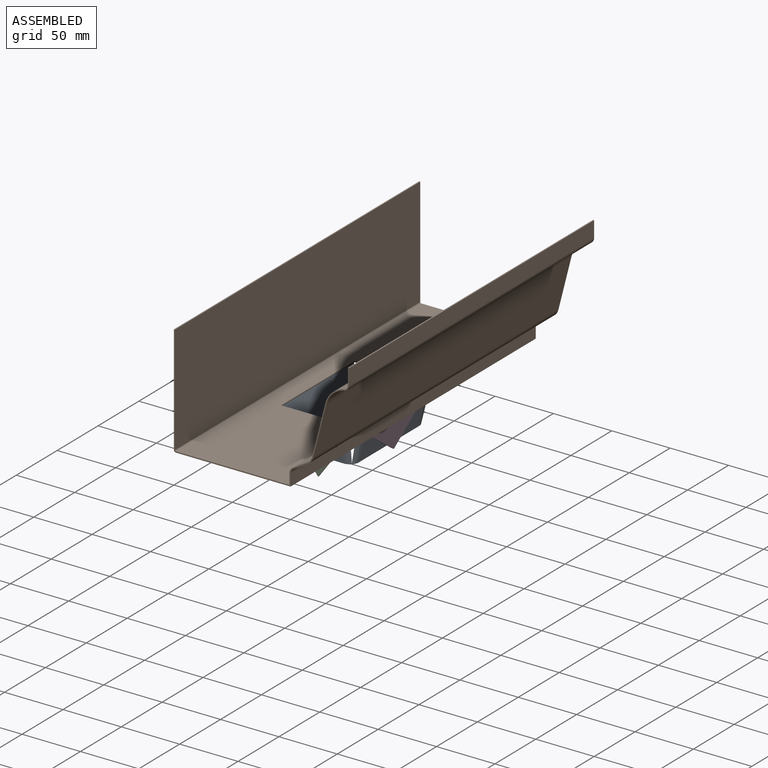
[diagram: assembled view]
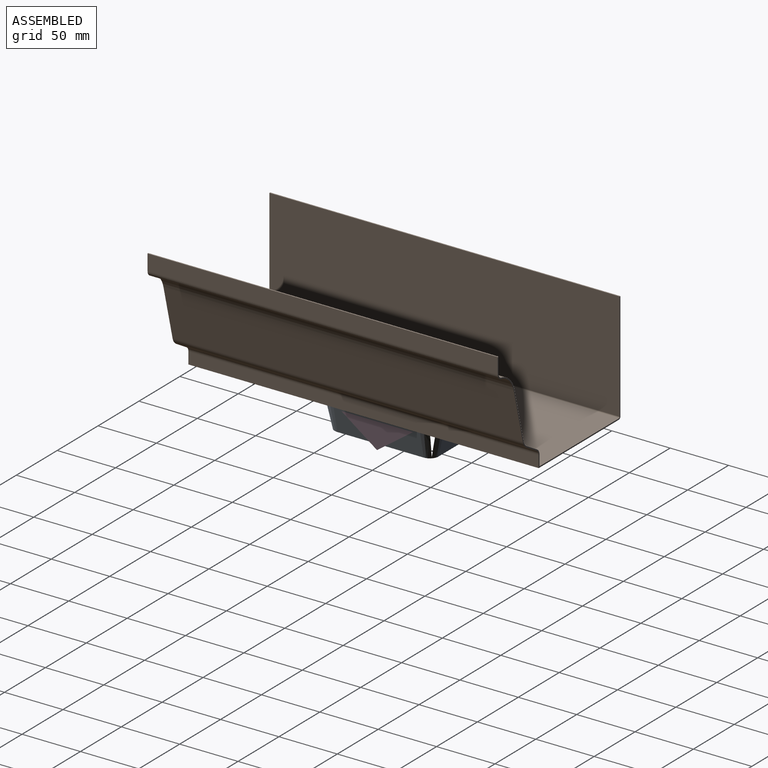
[diagram: assembled view, second angle]
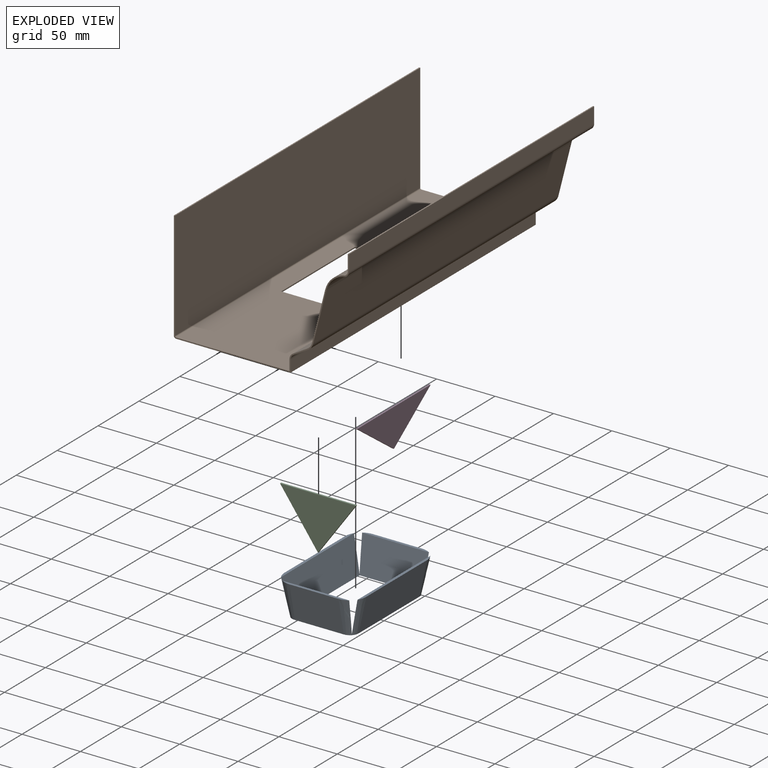
[diagram: exploded view]
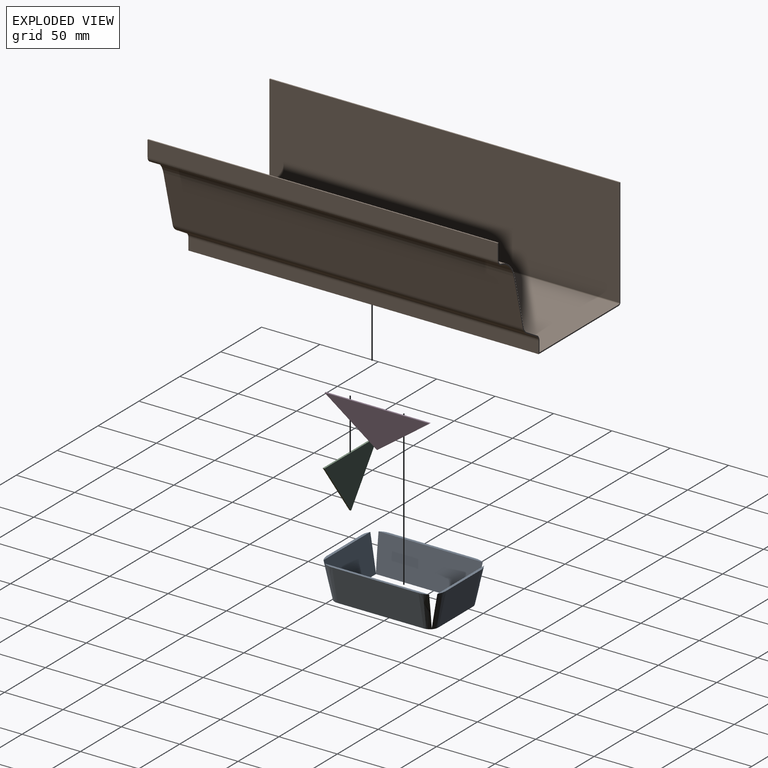
[diagram: exploded view, second angle]
ASSEMBLY  parts=4 mates=3
PART A: 17 faces, bbox 102.5x70.5x30.5 mm
  f0: plane 57.22x2.25mm, normal (0,0,1), area 117.7mm2, adj f5,f11,f12,f15
  f1: plane 89.22x2.25mm, normal (0,0,1), area 189.7mm2, adj f5,f6,f7,f16
  f2: plane 57.22x2.25mm, normal (0,0,1), area 117.7mm2, adj f7,f8,f9,f13
  f3: plane 89x57mm, normal (0,0,-1), area 588.5mm2, adj f5,f6,f7,f8,f9,f10,f11,f12
  f4: plane 89.22x2.25mm, normal (0,0,1), area 189.7mm2, adj f9,f10,f11,f14
  f5: cone r=7.5mm half-angle=12.2deg, axis (0,0,1), area 443.6mm2, adj f0,f1,f3,f6,f12,f15,f16
  f6: plane 74x30mm, normal (0,-0.98,-0.21), area 2271.5mm2, adj f1,f3,f5,f7
  f7: cone r=7.5mm half-angle=12.2deg, axis (0,0,1), area 443.6mm2, adj f1,f2,f3,f6,f8,f13,f16
  f8: plane 42x30mm, normal (0.98,0,-0.21), area 1289.2mm2, adj f2,f3,f7,f9
  f9: cone r=7.5mm half-angle=12.2deg, axis (0,0,1), area 443.6mm2, adj f2,f3,f4,f8,f10,f13,f14
  f10: plane 74x30mm, normal (0,0.98,-0.21), area 2271.5mm2, adj f3,f4,f9,f11
  f11: cone r=7.5mm half-angle=12.2deg, axis (0,0,1), area 443.6mm2, adj f0,f3,f4,f10,f12,f14,f15
  f12: plane 42x30mm, normal (-0.98,0,-0.21), area 1289.2mm2, adj f0,f3,f5,f11
  f13: plane 57.75x30.52mm, normal (-0.98,0,0.21), area 1691.2mm2, adj f2,f3,f7,f9,f14,f16
  f14: plane 89.75x30.52mm, normal (0,-0.98,0.21), area 2673.5mm2, adj f3,f4,f9,f11,f13,f15
  f15: plane 57.75x30.52mm, normal (0.98,0,0.21), area 1691.2mm2, adj f0,f3,f5,f11,f14,f16
  f16: plane 89.75x30.52mm, normal (0,0.98,0.21), area 2673.5mm2, adj f1,f3,f5,f7,f13,f15
PART B: 30 faces, bbox 150x300x105 mm
  f0: plane 300x97mm, normal (0,0,1), area 23250mm2, adj f10,f11,f24,f25,f26,f27,f28,f29
  f1: plane 300x98mm, normal (0,0,-1), area 23550mm2, adj f15,f16,f24,f25,f26,f27,f28,f29
  f2: plane 300x1mm, normal (0,0,1), area 300mm2, adj f3,f23,f24,f25
  f3: plane 300x13.63mm, normal (-1,0,0), area 4087.5mm2, adj f2,f4,f24,f25
  f4: cylinder r=4mm len=300mm, axis (0,1,0), area 1374.8mm2, adj f3,f5,f24,f25
  f5: cylinder r=21mm len=300mm, axis (0,1,0), area 7322.6mm2, adj f4,f6,f24,f25
  f6: plane 300x44.29mm, normal (-0.97,0,0.25), area 13708.2mm2, adj f5,f7,f24,f25
  f7: cylinder r=8.68mm len=300mm, axis (0,1,0), area 2056.1mm2, adj f6,f8,f24,f25
  f8: plane 300x12.46mm, normal (-0.51,0,0.86), area 4341.5mm2, adj f7,f9,f24,f25
  f9: cylinder r=6mm len=300mm, axis (0,1,0), area 1867.7mm2, adj f8,f10,f24,f25
  f10: plane 300x9mm, normal (-1,0,0), area 2700mm2, adj f0,f9,f24,f25
  f11: cylinder r=1mm len=300mm, axis (0,1,0), area 471.2mm2, adj f0,f12,f24,f25
  f12: plane 300x93mm, normal (1,0,0), area 27900mm2, adj f11,f13,f24,f25
  f13: plane 300x1mm, normal (0,0,1), area 300mm2, adj f12,f14,f24,f25
  f14: plane 300x93mm, normal (-1,0,0), area 27900mm2, adj f13,f15,f24,f25
  f15: cylinder r=2mm len=300mm, axis (0,1,0), area 942.5mm2, adj f1,f14,f24,f25
  f16: plane 300x10mm, normal (1,0,0), area 3000mm2, adj f1,f17,f24,f25
  f17: cylinder r=5mm len=300mm, axis (0,1,0), area 1556.4mm2, adj f16,f18,f24,f25
  f18: plane 300x12.46mm, normal (0.51,0,-0.86), area 4341.5mm2, adj f17,f19,f24,f25
  f19: cylinder r=9.68mm len=300mm, axis (0,1,0), area 2292.9mm2, adj f18,f20,f24,f25
  f20: plane 300x44.29mm, normal (0.97,0,-0.25), area 13708.2mm2, adj f19,f21,f24,f25
  f21: cylinder r=20mm len=300mm, axis (0,1,0), area 7011.3mm2, adj f20,f22,f24,f25
  f22: cylinder r=5mm len=300mm, axis (0,1,0), area 1772.8mm2, adj f21,f23,f24,f25
  f23: plane 300x13.59mm, normal (1,0,0), area 4075.7mm2, adj f2,f22,f24,f25
  f24: plane 150x105mm, normal (0,-1,0), area 318.2mm2, adj f0,f1,f2,f3,f4,f5,f6,f7
  f25: plane 150x105mm, normal (0,1,0), area 318.2mm2, adj f0,f1,f2,f3,f4,f5,f6,f7
  f26: plane 90x1mm, normal (1,0,0), area 90mm2, adj f0,f1,f27,f29
  f27: plane 65x1mm, normal (0,-1,0), area 65mm2, adj f0,f1,f26,f28
  f28: plane 90x1mm, normal (-1,0,0), area 90mm2, adj f0,f1,f27,f29
  f29: plane 65x1mm, normal (0,1,0), area 65mm2, adj f0,f1,f26,f28
PART C: 5 faces, bbox 45x65x1.5 mm
  f0: plane 45x32.5mm, normal (0.59,0.81,0), area 83.3mm2, adj f1,f2,f3,f4
  f1: plane 65x1.5mm, normal (-1,0,0), area 97.5mm2, adj f0,f2,f3,f4
  f2: plane 45x32.5mm, normal (0.59,-0.81,0), area 83.3mm2, adj f0,f1,f3,f4
  f3: plane 65x45mm, normal (0,0,1), area 1462.5mm2, adj f0,f1,f2
  f4: plane 65x45mm, normal (0,0,-1), area 1462.5mm2, adj f0,f1,f2
PART D: 5 faces, bbox 90x32.5x1.5 mm
  f0: plane 90x1.5mm, normal (0,-1,0), area 135mm2, adj f1,f2,f3,f4
  f1: plane 45x32.5mm, normal (0.59,0.81,0), area 83.3mm2, adj f0,f2,f3,f4
  f2: plane 45x32.5mm, normal (-0.59,0.81,0), area 83.3mm2, adj f0,f1,f3,f4
  f3: plane 90x32.5mm, normal (0,0,1), area 1462.5mm2, adj f0,f1,f2
  f4: plane 90x32.5mm, normal (0,0,-1), area 1462.5mm2, adj f0,f1,f2
PLACE A rot(axis=(0,0,1),90deg) t=(-24.25,-150,-52.5)mm
PLACE B at identity fixed
PLACE C rot(axis=(-0.58,0.58,0.58),120deg) t=(-24,-196.5,-97.5)mm
PLACE D rot(axis=(-0.58,0.58,-0.58),120deg) t=(7,-150,-85)mm
MATE revolute C.f1 <-> B.f1  axis (0,0,1) through (-24,-195,-52.5)mm
MATE fastened A.f1 <-> B.f1  axis (0,0,1) through (8.5,-150,-52.5)mm
MATE fastened D.f0 <-> B.f1  axis (0,0,1) through (8.5,-150,-52.5)mm
